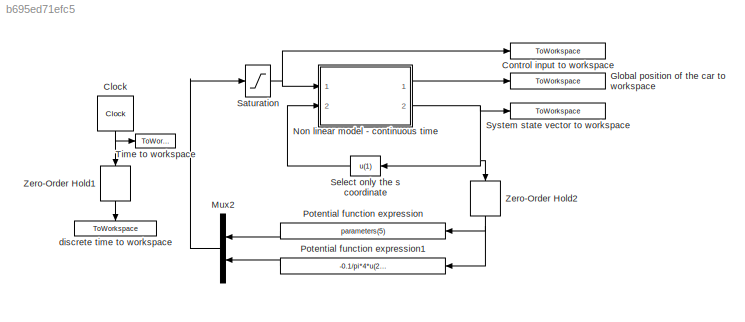
MODEL slx_b695ed71efc5
KIND model
CONFIG AbsTol = auto
CONFIG EnableMultiTasking = on
CONFIG FixedStep = auto
CONFIG MaxStep = 0.01
CONFIG MinStep = auto
CONFIG RelTol = 1e-3
CONFIG SampleTimeConstraint = Unconstrained
CONFIG Solver = ode45
CONFIG SolverName = ode45
CONFIG StartTime = 0.0
CONFIG StopTime = simulation_time
BLOCK [Clock] Clock
  DisplayTime = on
BLOCK [ToWorkspace] Control input to workspace
  MaxDataPoints = inf
  Ports = [1]
  SampleTime = -1
  VariableName = u
BLOCK [ToWorkspace] Global position of the car to workspace
  MaxDataPoints = inf
  Ports = [1]
  SampleTime = -1
  VariableName = global_position
BLOCK [Mux] Mux2
  DisplayOption = bar
  Inputs = 2
  Ports = [2, 1]
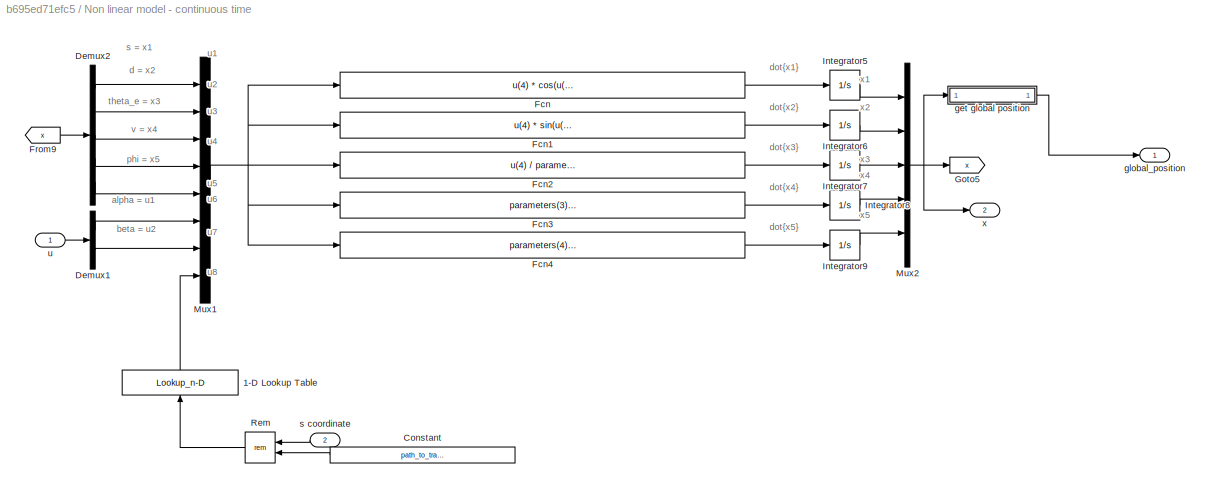
BLOCK [SubSystem] Non linear model - continuous time
  Ports = [2, 2]
  RequestExecContextInheritance = off
BLOCK [Lookup_n-D] Non linear model - continuous time/1-D Lookup Table
  BreakpointsForDimension1 = path_to_track.s_coordinate
  InternalRulePriority = Speed
  NumberOfTableDimensions = 1
  Ports = [1, 1]
  RndMeth = Simplest
  Table = path_to_track.curvature
BLOCK [Constant] Non linear model - continuous time/Constant
  Value = path_to_track.s_coordinate(end)
BLOCK [Demux] Non linear model - continuous time/Demux1
  DisplayOption = bar
  Outputs = 2
  Ports = [1, 2]
BLOCK [Demux] Non linear model - continuous time/Demux2
  DisplayOption = bar
  Outputs = 5
  Ports = [1, 5]
BLOCK [Fcn] Non linear model - continuous time/Fcn
  Expr = u(4) * cos(u(3)) / (1 - u(8)*u(2) )
BLOCK [Fcn] Non linear model - continuous time/Fcn1
  Expr = u(4) * sin(u(3))
BLOCK [Fcn] Non linear model - continuous time/Fcn2
  Expr = u(4) / parameters(2) * tan(u(5)) - u(8) * u(4) * cos(u(3)) / (1 - u(8)*u(2) )
BLOCK [Fcn] Non linear model - continuous time/Fcn3
  Expr = parameters(3) * (u(6) - u(4))
BLOCK [Fcn] Non linear model - continuous time/Fcn4
  Expr = parameters(4) * (u(7) - u(5))
BLOCK [From] Non linear model - continuous time/From9
  GotoTag = x
BLOCK [Goto] Non linear model - continuous time/Goto5
  GotoTag = x
BLOCK [Integrator] Non linear model - continuous time/Integrator5
  InitialCondition = x0(1)
  Ports = [1, 1]
BLOCK [Integrator] Non linear model - continuous time/Integrator6
  InitialCondition = x0(2)
  Ports = [1, 1]
BLOCK [Integrator] Non linear model - continuous time/Integrator7
  InitialCondition = x0(3)
  Ports = [1, 1]
BLOCK [Integrator] Non linear model - continuous time/Integrator8
  InitialCondition = x0(4)
  Ports = [1, 1]
BLOCK [Integrator] Non linear model - continuous time/Integrator9
  InitialCondition = x0(5)
  Ports = [1, 1]
BLOCK [Mux] Non linear model - continuous time/Mux1
  DisplayOption = bar
  Inputs = 8
  Ports = [8, 1]
BLOCK [Mux] Non linear model - continuous time/Mux2
  DisplayOption = bar
  Inputs = 5
  Ports = [5, 1]
BLOCK [Math] Non linear model - continuous time/Rem
  Operator = rem
  Ports = [2, 1]
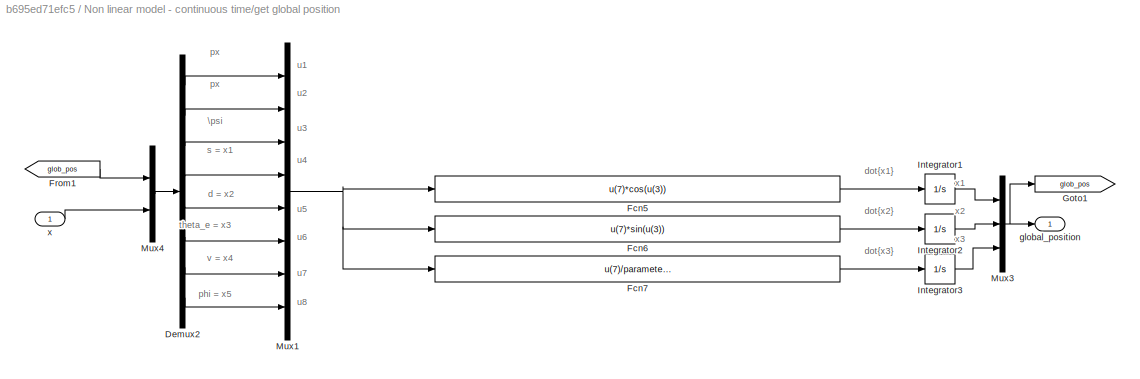
BLOCK [SubSystem] Non linear model - continuous time/get global position
  Ports = [1, 1]
  RequestExecContextInheritance = off
BLOCK [Demux] Non linear model - continuous time/get global position/Demux2
  DisplayOption = bar
  Outputs = 8
  Ports = [1, 8]
BLOCK [Fcn] Non linear model - continuous time/get global position/Fcn5
  Expr = u(7)*cos(u(3))
BLOCK [Fcn] Non linear model - continuous time/get global position/Fcn6
  Expr = u(7)*sin(u(3))
BLOCK [Fcn] Non linear model - continuous time/get global position/Fcn7
  Expr = u(7)/parameters(2)*tan(u(8))
BLOCK [From] Non linear model - continuous time/get global position/From1
  GotoTag = glob_pos
BLOCK [Goto] Non linear model - continuous time/get global position/Goto1
  GotoTag = glob_pos
BLOCK [Integrator] Non linear model - continuous time/get global position/Integrator1
  Ports = [1, 1]
BLOCK [Integrator] Non linear model - continuous time/get global position/Integrator2
  Ports = [1, 1]
BLOCK [Integrator] Non linear model - continuous time/get global position/Integrator3
  Ports = [1, 1]
BLOCK [Mux] Non linear model - continuous time/get global position/Mux1
  DisplayOption = bar
  Inputs = 8
  Ports = [8, 1]
BLOCK [Mux] Non linear model - continuous time/get global position/Mux3
  DisplayOption = bar
  Inputs = 3
  Ports = [3, 1]
BLOCK [Mux] Non linear model - continuous time/get global position/Mux4
  DisplayOption = bar
  Inputs = 2
  Ports = [2, 1]
BLOCK [Outport] Non linear model - continuous time/get global position/global_position
  IconDisplay = Port number
BLOCK [Inport] Non linear model - continuous time/get global position/x
  IconDisplay = Port number
BLOCK [Outport] Non linear model - continuous time/global_position
  IconDisplay = Port number
BLOCK [Inport] Non linear model - continuous time/s coordinate
  IconDisplay = Port number
  Port = 2
BLOCK [Inport] Non linear model - continuous time/u
  IconDisplay = Port number
BLOCK [Outport] Non linear model - continuous time/x
  IconDisplay = Port number
  Port = 2
BLOCK [Fcn] Potential function expression
  Expr = parameters(5)
BLOCK [Fcn] Potential function expression1
  Expr = -0.1/pi*4*u(2) -10/pi*4*u(3)
BLOCK [Saturate] Saturation
  InputPortMap = u0
  LowerLimit = [0;-pi/4]
  Ports = [1, 1]
  UpperLimit = [Inf;pi/4]
BLOCK [Fcn] Select only the s coordinate
  Expr = u(1)
BLOCK [ToWorkspace] System state vector to workspace
  MaxDataPoints = inf
  Ports = [1]
  SampleTime = -1
  VariableName = x
BLOCK [ToWorkspace] Time to workspace
  MaxDataPoints = inf
  Ports = [1]
  SampleTime = -1
  VariableName = time
BLOCK [ZeroOrderHold] Zero-Order Hold1
  SampleTime = sampling_time
BLOCK [ZeroOrderHold] Zero-Order Hold2
  SampleTime = sampling_time
BLOCK [ToWorkspace] discrete time to workspace
  MaxDataPoints = inf
  Ports = [1]
  SampleTime = -1
  VariableName = discrete_time
ANNOTATION Non linear model - continuous time: alpha = u1
ANNOTATION Non linear model - continuous time: beta = u2
ANNOTATION Non linear model - continuous time: d = x2
ANNOTATION Non linear model - continuous time: dot{x1}
ANNOTATION Non linear model - continuous time: dot{x2}
ANNOTATION Non linear model - continuous time: dot{x3}
ANNOTATION Non linear model - continuous time: dot{x4}
ANNOTATION Non linear model - continuous time: dot{x5}
ANNOTATION Non linear model - continuous time: phi = x5
ANNOTATION Non linear model - continuous time: s = x1
ANNOTATION Non linear model - continuous time: theta_e = x3
ANNOTATION Non linear model - continuous time: u1
ANNOTATION Non linear model - continuous time: u2
ANNOTATION Non linear model - continuous time: u3
ANNOTATION Non linear model - continuous time: u4
ANNOTATION Non linear model - continuous time: u5
ANNOTATION Non linear model - continuous time: u6
ANNOTATION Non linear model - continuous time: u7
ANNOTATION Non linear model - continuous time: u8
ANNOTATION Non linear model - continuous time: v = x4
ANNOTATION Non linear model - continuous time: x1
ANNOTATION Non linear model - continuous time: x2
ANNOTATION Non linear model - continuous time: x3
ANNOTATION Non linear model - continuous time: x4
ANNOTATION Non linear model - continuous time: x5
ANNOTATION Non linear model - continuous time/get global position: \psi
ANNOTATION Non linear model - continuous time/get global position: d = x2
ANNOTATION Non linear model - continuous time/get global position: dot{x1}
ANNOTATION Non linear model - continuous time/get global position: dot{x2}
ANNOTATION Non linear model - continuous time/get global position: dot{x3}
ANNOTATION Non linear model - continuous time/get global position: phi = x5
ANNOTATION Non linear model - continuous time/get global position: px
ANNOTATION Non linear model - continuous time/get global position: s = x1
ANNOTATION Non linear model - continuous time/get global position: theta_e = x3
ANNOTATION Non linear model - continuous time/get global position: u1
ANNOTATION Non linear model - continuous time/get global position: u2
ANNOTATION Non linear model - continuous time/get global position: u3
ANNOTATION Non linear model - continuous time/get global position: u4
ANNOTATION Non linear model - continuous time/get global position: u5
ANNOTATION Non linear model - continuous time/get global position: u6
ANNOTATION Non linear model - continuous time/get global position: u7
ANNOTATION Non linear model - continuous time/get global position: u8
ANNOTATION Non linear model - continuous time/get global position: v = x4
ANNOTATION Non linear model - continuous time/get global position: x1
ANNOTATION Non linear model - continuous time/get global position: x2
ANNOTATION Non linear model - continuous time/get global position: x3
NET Clock:1 -> Time to workspace:1, Zero-Order Hold1:1
LINE Mux2:1 -> Saturation:1
LINE Non linear model - continuous time/1-D Lookup Table:1 -> Non linear model - continuous time/Mux1:8
LINE Non linear model - continuous time/Constant:1 -> Non linear model - continuous time/Rem:2
LINE Non linear model - continuous time/Demux1:1 -> Non linear model - continuous time/Mux1:6
LINE Non linear model - continuous time/Demux1:2 -> Non linear model - continuous time/Mux1:7
LINE Non linear model - continuous time/Demux2:1 -> Non linear model - continuous time/Mux1:1
LINE Non linear model - continuous time/Demux2:2 -> Non linear model - continuous time/Mux1:2
LINE Non linear model - continuous time/Demux2:3 -> Non linear model - continuous time/Mux1:3
LINE Non linear model - continuous time/Demux2:4 -> Non linear model - continuous time/Mux1:4
LINE Non linear model - continuous time/Demux2:5 -> Non linear model - continuous time/Mux1:5
LINE Non linear model - continuous time/Fcn1:1 -> Non linear model - continuous time/Integrator6:1
LINE Non linear model - continuous time/Fcn2:1 -> Non linear model - continuous time/Integrator7:1
LINE Non linear model - continuous time/Fcn3:1 -> Non linear model - continuous time/Integrator8:1
LINE Non linear model - continuous time/Fcn4:1 -> Non linear model - continuous time/Integrator9:1
LINE Non linear model - continuous time/Fcn:1 -> Non linear model - continuous time/Integrator5:1
LINE Non linear model - continuous time/From9:1 -> Non linear model - continuous time/Demux2:1
LINE Non linear model - continuous time/Integrator5:1 -> Non linear model - continuous time/Mux2:1
LINE Non linear model - continuous time/Integrator6:1 -> Non linear model - continuous time/Mux2:2
LINE Non linear model - continuous time/Integrator7:1 -> Non linear model - continuous time/Mux2:3
LINE Non linear model - continuous time/Integrator8:1 -> Non linear model - continuous time/Mux2:4
LINE Non linear model - continuous time/Integrator9:1 -> Non linear model - continuous time/Mux2:5
NET Non linear model - continuous time/Mux1:1 -> Non linear model - continuous time/Fcn1:1, Non linear model - continuous time/Fcn2:1, Non linear model - continuous time/Fcn3:1, Non linear model - continuous time/Fcn4:1, Non linear model - continuous time/Fcn:1
NET Non linear model - continuous time/Mux2:1 -> Non linear model - continuous time/Goto5:1, Non linear model - continuous time/get global position:1, Non linear model - continuous time/x:1
LINE Non linear model - continuous time/Rem:1 -> Non linear model - continuous time/1-D Lookup Table:1
LINE Non linear model - continuous time/get global position/Demux2:1 -> Non linear model - continuous time/get global position/Mux1:1
LINE Non linear model - continuous time/get global position/Demux2:2 -> Non linear model - continuous time/get global position/Mux1:2
LINE Non linear model - continuous time/get global position/Demux2:3 -> Non linear model - continuous time/get global position/Mux1:3
LINE Non linear model - continuous time/get global position/Demux2:4 -> Non linear model - continuous time/get global position/Mux1:4
LINE Non linear model - continuous time/get global position/Demux2:5 -> Non linear model - continuous time/get global position/Mux1:5
LINE Non linear model - continuous time/get global position/Demux2:6 -> Non linear model - continuous time/get global position/Mux1:6
LINE Non linear model - continuous time/get global position/Demux2:7 -> Non linear model - continuous time/get global position/Mux1:7
LINE Non linear model - continuous time/get global position/Demux2:8 -> Non linear model - continuous time/get global position/Mux1:8
LINE Non linear model - continuous time/get global position/Fcn5:1 -> Non linear model - continuous time/get global position/Integrator1:1
LINE Non linear model - continuous time/get global position/Fcn6:1 -> Non linear model - continuous time/get global position/Integrator2:1
LINE Non linear model - continuous time/get global position/Fcn7:1 -> Non linear model - continuous time/get global position/Integrator3:1
LINE Non linear model - continuous time/get global position/From1:1 -> Non linear model - continuous time/get global position/Mux4:1
LINE Non linear model - continuous time/get global position/Integrator1:1 -> Non linear model - continuous time/get global position/Mux3:1
LINE Non linear model - continuous time/get global position/Integrator2:1 -> Non linear model - continuous time/get global position/Mux3:2
LINE Non linear model - continuous time/get global position/Integrator3:1 -> Non linear model - continuous time/get global position/Mux3:3
NET Non linear model - continuous time/get global position/Mux1:1 -> Non linear model - continuous time/get global position/Fcn5:1, Non linear model - continuous time/get global position/Fcn6:1, Non linear model - continuous time/get global position/Fcn7:1
NET Non linear model - continuous time/get global position/Mux3:1 -> Non linear model - continuous time/get global position/Goto1:1, Non linear model - continuous time/get global position/global_position:1
LINE Non linear model - continuous time/get global position/Mux4:1 -> Non linear model - continuous time/get global position/Demux2:1
LINE Non linear model - continuous time/get global position/x:1 -> Non linear model - continuous time/get global position/Mux4:2
LINE Non linear model - continuous time/get global position:1 -> Non linear model - continuous time/global_position:1
LINE Non linear model - continuous time/s coordinate:1 -> Non linear model - continuous time/Rem:1
LINE Non linear model - continuous time/u:1 -> Non linear model - continuous time/Demux1:1
LINE Non linear model - continuous time:1 -> Global position of the car to workspace:1
NET Non linear model - continuous time:2 -> Select only the s coordinate:1, System state vector to workspace:1, Zero-Order Hold2:1
LINE Potential function expression1:1 -> Mux2:2
LINE Potential function expression:1 -> Mux2:1
NET Saturation:1 -> Control input to workspace:1, Non linear model - continuous time:1
LINE Select only the s coordinate:1 -> Non linear model - continuous time:2
LINE Zero-Order Hold1:1 -> discrete time to workspace:1
NET Zero-Order Hold2:1 -> Potential function expression1:1, Potential function expression:1
note: NET lines group one-source signal fan-out (src -> all destinations, sorted); 1:1 wires keep LINE
